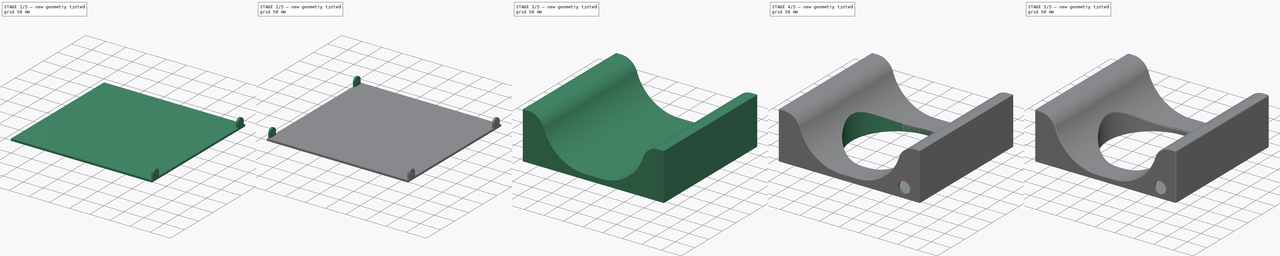
[diagram: build sequence overview — one tinted view per stage of 5, left to right]
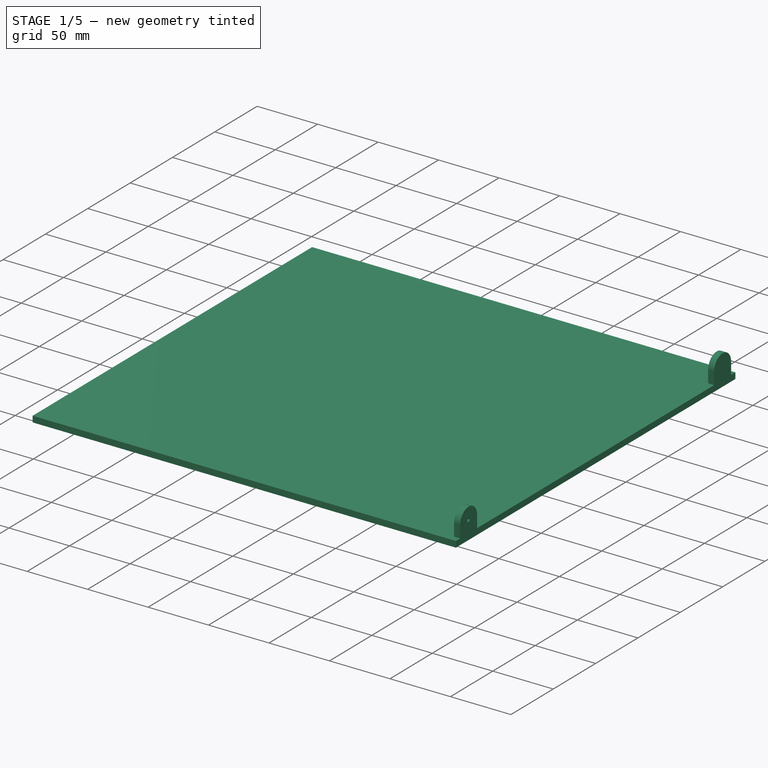
[diagram: stage 1 of 5 — iso view after this stage's code; geometry added in this stage tinted green]
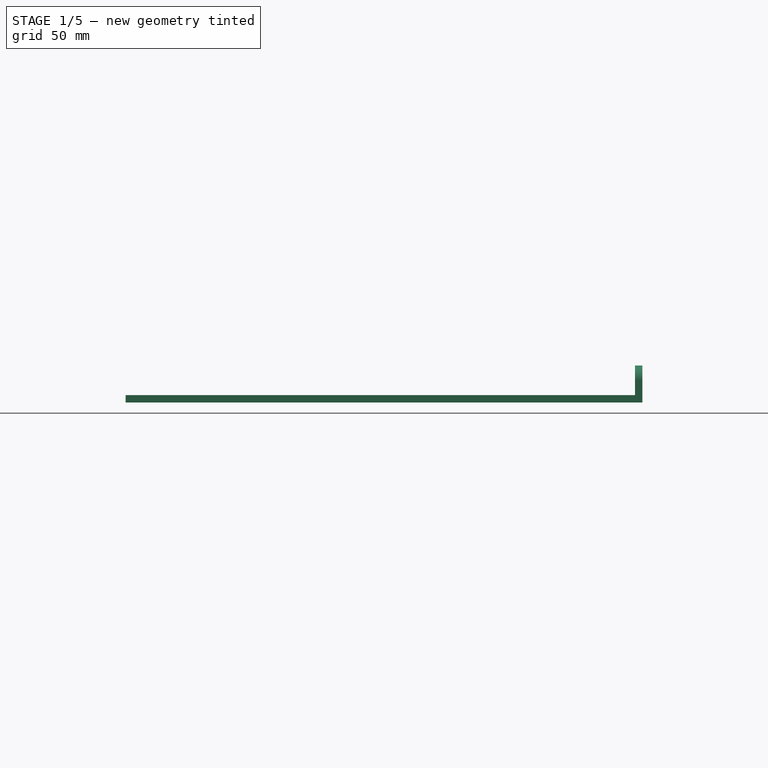
[diagram: stage 1 of 5 — front view after this stage's code; geometry added in this stage tinted green]
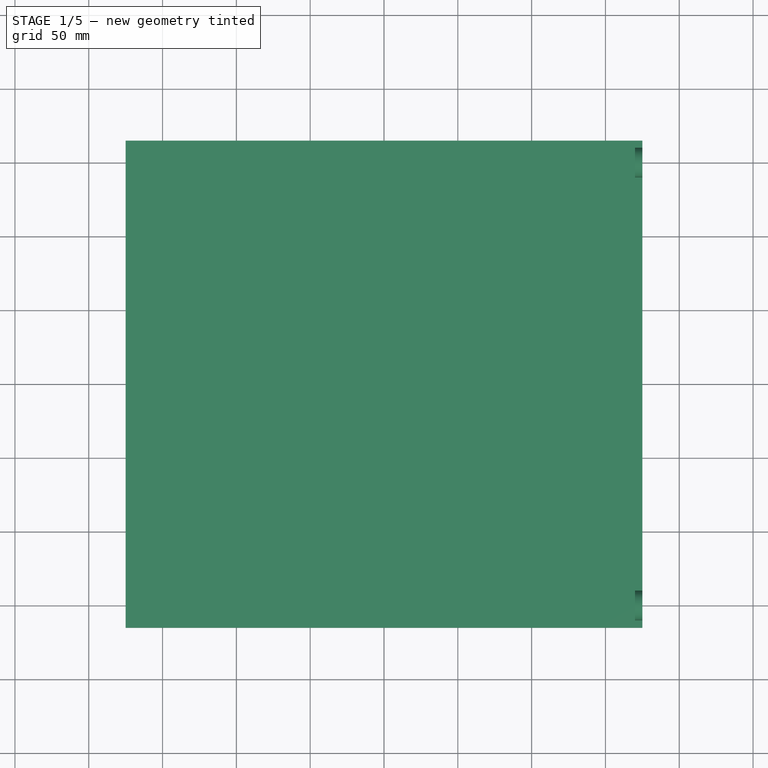
[diagram: stage 1 of 5 — top view after this stage's code; geometry added in this stage tinted green]
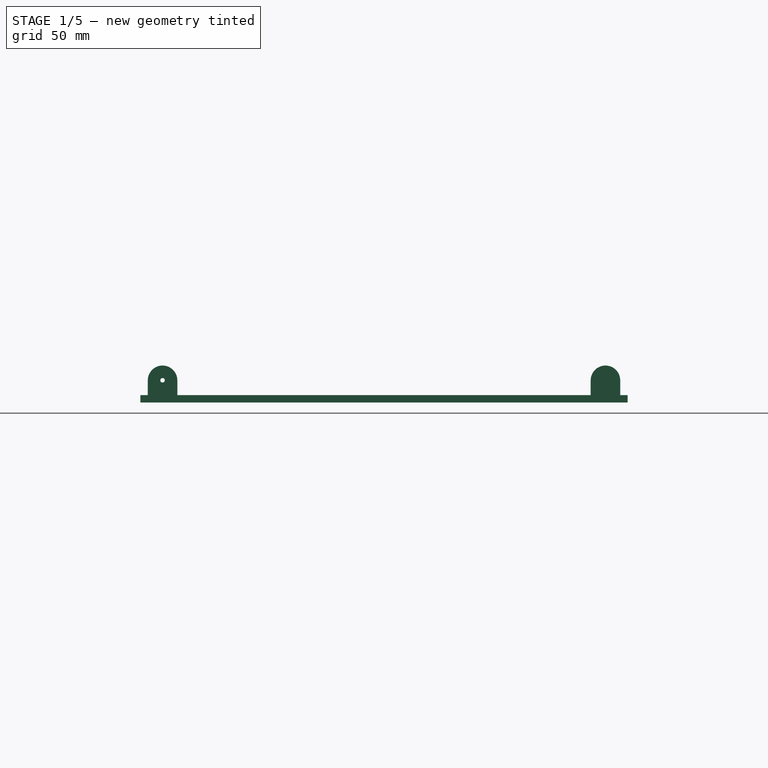
[diagram: stage 1 of 5 — right view after this stage's code; geometry added in this stage tinted green]
FCSTD DOCUMENT  (FreeCAD 0.19R24291 (Git))
Label: fus_curved_spine
License: All rights reserved
LicenseURL: http://en.wikipedia.org/wiki/All_rights_reserved
objects: Sketcher::SketchObject×12, PartDesign::Pocket×6, PartDesign::Fillet×5, PartDesign::Pad×4, PartDesign::Mirrored×4, PartDesign::Body×2, PartDesign::PolarPattern×2
note: 50 computed .brp shape members not serialized (recipe doc carries the construction recipe); baked Part::Feature solids carry a one-line shape summary decoded from their .brp

FEATURE [Sketcher::SketchObject] Sketch008
  AttachmentOffset = pos=(0,0,20) rot=(0,0,1;0rad)
  FullyConstrained = true
  MapMode = 5
  Placement = pos=(20,-4.4e-15,4.4e-15) rot=(0.57735,0.57735,0.57735;2.0944rad)
  Support = -> [YZ_Plane]
  sketch-geometry (1):
    g0: Circle CenterX=-120 CenterY=15 CenterZ=0 NormalX=0 NormalY=0 NormalZ=1 AngleXU=0 Radius=1
  constraints (3):
    c: Radius(g0) = 1
    c: DistanceX(g0,g-1) = 120
    c: DistanceY(g-1,g0) = 15
FEATURE [Sketcher::SketchObject] Sketch009
  AttachmentOffset = pos=(0,0,15) rot=(0,0,1;0rad)
  ExternalGeometry = -> [Sketch008]
  FullyConstrained = false
  MapMode = 5
  Placement = pos=(0,0,15) rot=(0,0,1;0rad)
  Support = -> [XY_Plane]
  sketch-geometry (32):
    g0-g4: Circle x5 (B-spline internal-alignment scaffolding for g5; pole/knot coordinates omitted)
    g5: BSplineCurve PolesCount=5 KnotsCount=3 Degree=3 IsPeriodic=0
    g6: GeomPoint X=20 Y=-120 Z=0
    g7: GeomPoint X=-88.4332 Y=-82.3166 Z=0
    g8: GeomPoint X=-124.052 Y=15.2977 Z=0
    g9-g20: Circle x12 (B-spline internal-alignment scaffolding for g21; pole/knot coordinates omitted)
    g21: BSplineCurve PolesCount=12 KnotsCount=10 Degree=3 IsPeriodic=0
    g22-g31: GeomPoint x10 (B-spline internal-alignment scaffolding for g21; pole/knot coordinates omitted)
  constraints (14):
    c: Weight(g0) = 1
    c: Equal(g0, g1-g4) x4
    c: InternalAlignment(g0-g4 -> g5) x5
    c: InternalAlignment(g6,g5)
    c: InternalAlignment(g7,g5)
    c: InternalAlignment(g8,g5)
    c: DistanceY(g5,g-1) = 120
    c: DistanceX(g-1,g5) = 20
    c: Coincident(g21,g-3)
    c: Weight(g9) = 1
    c: Equal(g9, g10-g20) x11
    c: Coincident(g21,g5)
    c: InternalAlignment(g9-g20 -> g21) x12
    c: InternalAlignment(g22-g31 -> g21) x10
FEATURE [PartDesign::Body] Body
  Group = -> [Sketch,Pad,Sketch001,Pocket,Pad001,Sketch002,Pocket001,Pocket002,Sketch007,Sketch006,Sketch003,Pocket003,Fillet,Fillet001,Fillet002,Fillet003,Sketch008,Sketch009]
  Origin = -> Origin
  Tip = -> Fillet003
FEATURE [Sketcher::SketchObject] Sketch010
  FullyConstrained = true
  MapMode = 5
  Support = -> [XY_Plane001]
  sketch-geometry (4):
    g0: LineSegment StartX=-175 StartY=165 StartZ=0 EndX=175 EndY=165 EndZ=0
    g1: LineSegment StartX=175 StartY=165 StartZ=0 EndX=175 EndY=-165 EndZ=0
    g2: LineSegment StartX=175 StartY=-165 StartZ=0 EndX=-175 EndY=-165 EndZ=0
    g3: LineSegment StartX=-175 StartY=-165 StartZ=0 EndX=-175 EndY=165 EndZ=0
  constraints (10):
    c: Coincident(g0,g1)
    c: Coincident(g1,g2)
    c: Coincident(g2,g3)
    c: Coincident(g3,g0)
    c: Horizontal(g2)
    c: Vertical(g3)
    c: DistanceX(g2,g2) = 350
    c: DistanceY(g1,g1) = 330
    c: Symmetric(g0,g1,g-1)
    c: Symmetric(g0,g0,g-2)
FEATURE [PartDesign::Pad] Pad002
  Direction = (1,1,1)
  Length = 5
  Length2 = 100
  Profile = -> Sketch010
  Refine = true
  Type = 0
FEATURE [Sketcher::SketchObject] Sketch011
  AttachmentOffset = pos=(0,0,175) rot=(0,0,1;0rad)
  ExternalGeometry = -> [Pad002]
  FullyConstrained = true
  MapMode = 5
  Placement = pos=(175,-3.89e-14,3.89e-14) rot=(0.57735,0.57735,0.57735;2.0944rad)
  Support = -> [YZ_Plane001]
  sketch-geometry (4):
    g0: LineSegment StartX=-160 StartY=0 StartZ=0 EndX=-160 EndY=15 EndZ=0
    g1: ArcOfCircle CenterX=-150 CenterY=15 CenterZ=0 NormalX=0 NormalY=0 NormalZ=1 AngleXU=0 Radius=10 StartAngle=1e-16 EndAngle=3.14159
    g2: LineSegment StartX=-140 StartY=15 StartZ=0 EndX=-140 EndY=0 EndZ=0
    g3: LineSegment StartX=-140 StartY=0 StartZ=0 EndX=-160 EndY=0 EndZ=0
  constraints (11):
    c: PointOnObject(g0,g-1)
    c: Vertical(g0)
    c: Tangent(g0,g1) = 1.5708
    c: Tangent(g1,g2) = 1.5708
    c: Coincident(g3,g2)
    c: Horizontal(g3)
    c: Coincident(g0,g3)
    c: Radius(g1) = 10
    c: DistanceY(g2,g2) = 15
    c: DistanceX(g2,g-1) = 140
    c: Vertical(g2)
FEATURE [PartDesign::Pad] Pad003
  BaseFeature = -> Pad002
  Direction = (1,1,1)
  Length = 5
  Length2 = 100
  Profile = -> Sketch011
  Refine = true
  Reversed = true
  Type = 0
FEATURE [Sketcher::SketchObject] Sketch012
  AttachmentOffset = pos=(0,0,175) rot=(0,0,1;0rad)
  ExternalGeometry = -> [Pad003]
  FullyConstrained = true
  MapMode = 5
  Placement = pos=(175,-3.89e-14,3.89e-14) rot=(0.57735,0.57735,0.57735;2.0944rad)
  Support = -> [YZ_Plane001]
  sketch-geometry (1):
    g0: Circle CenterX=-150 CenterY=15 CenterZ=0 NormalX=0 NormalY=0 NormalZ=1 AngleXU=0 Radius=1.5
  constraints (2):
    c: Coincident(g0,g-3)
    c: Radius(g0) = 1.5
FEATURE [PartDesign::Pocket] Pocket004
  BaseFeature = -> Pad003
  Length = 5
  Length2 = 100
  Profile = -> Sketch012
  Refine = true
  Type = 0
FEATURE [PartDesign::Mirrored] Mirrored
  BaseFeature = -> Pocket004
  MirrorPlane = -> Sketch011 [V_Axis]
  Originals = -> [Pad003]
  Refine = true
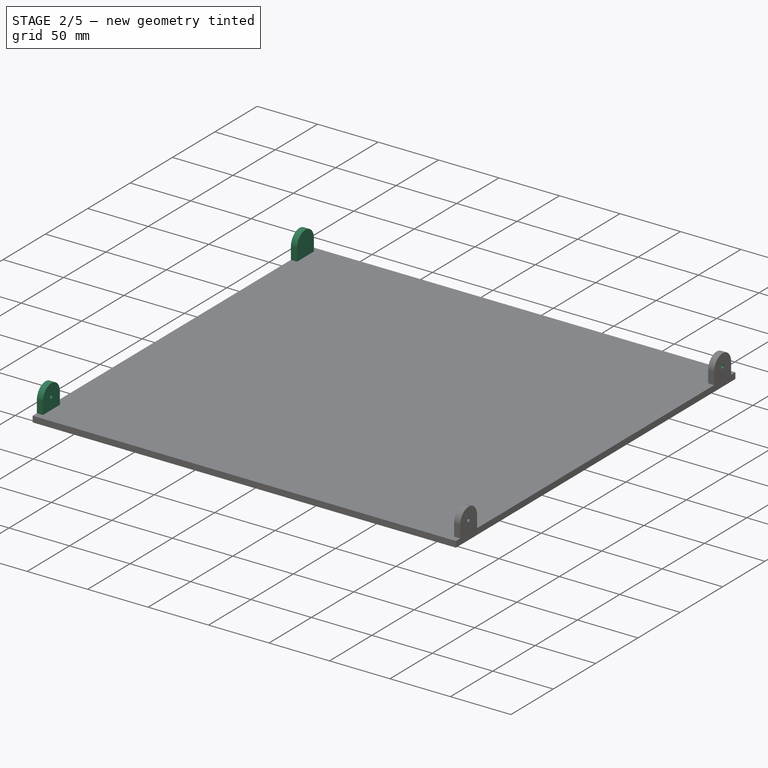
[diagram: stage 2 of 5 — iso view after this stage's code; geometry added in this stage tinted green]
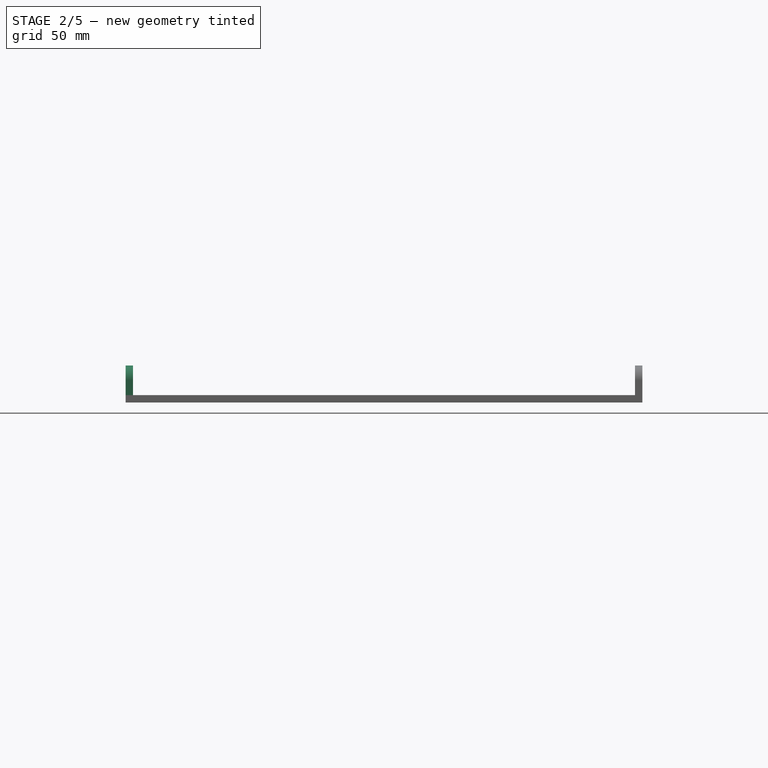
[diagram: stage 2 of 5 — front view after this stage's code; geometry added in this stage tinted green]
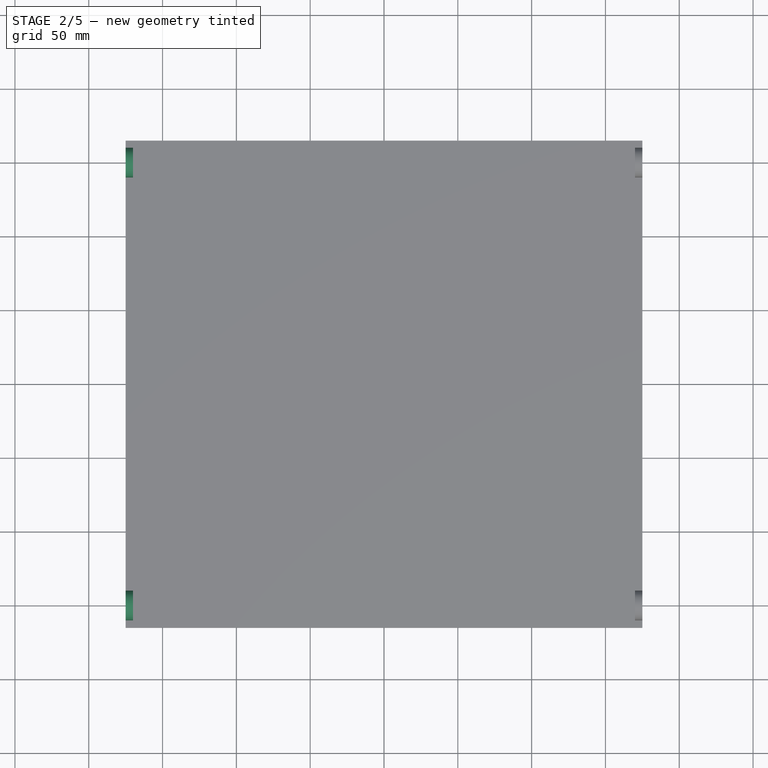
[diagram: stage 2 of 5 — top view after this stage's code; geometry added in this stage tinted green]
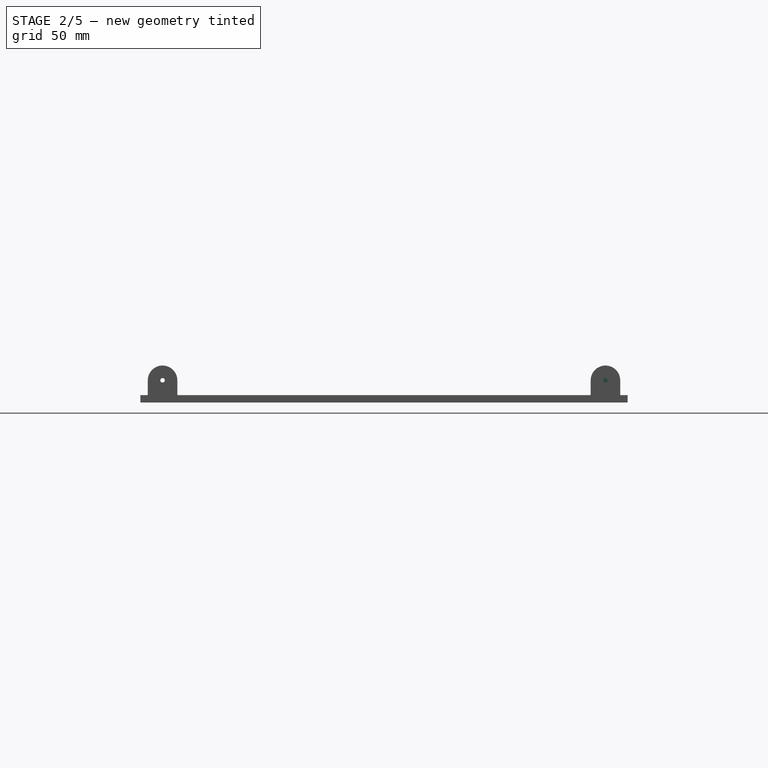
[diagram: stage 2 of 5 — right view after this stage's code; geometry added in this stage tinted green]
FEATURE [PartDesign::Mirrored] Mirrored001
  BaseFeature = -> Mirrored
  MirrorPlane = -> Sketch012 [V_Axis]
  Originals = -> [Pocket004]
  Refine = true
FEATURE [PartDesign::Mirrored] Mirrored002
  BaseFeature = -> Mirrored001
  MirrorPlane = -> YZ_Plane001
  Originals = -> [Pad003]
  Refine = true
FEATURE [PartDesign::Mirrored] Mirrored003
  BaseFeature = -> Mirrored002
  MirrorPlane = -> YZ_Plane001
  Originals = -> [Pocket004]
  Refine = true
FEATURE [PartDesign::PolarPattern] PolarPattern
  Angle = 360
  Axis = -> Z_Axis001
  BaseFeature = -> Mirrored003
  Occurrences = 2
  Originals = -> [Pad003]
  Refine = true
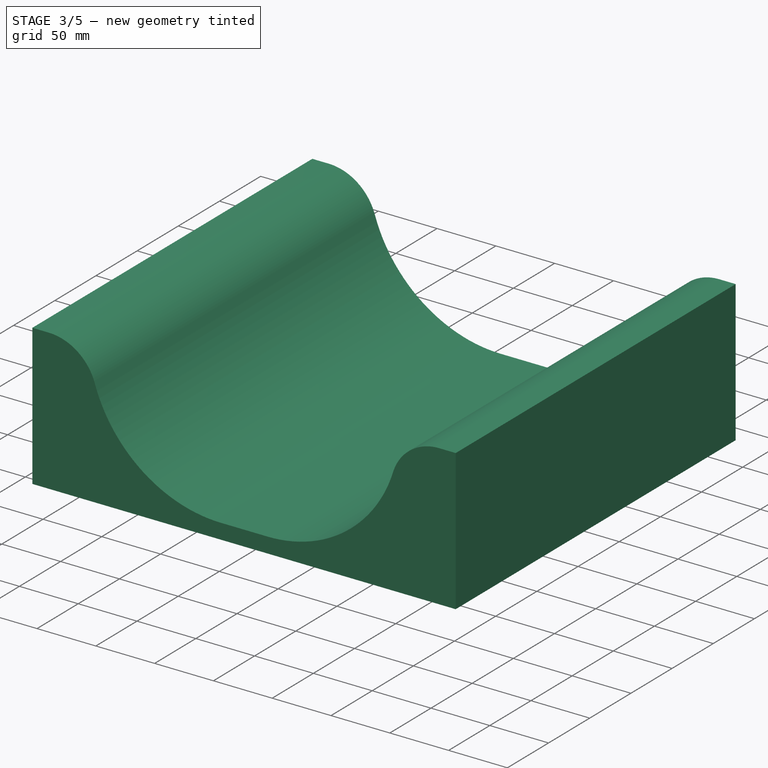
[diagram: stage 3 of 5 — iso view after this stage's code; geometry added in this stage tinted green]
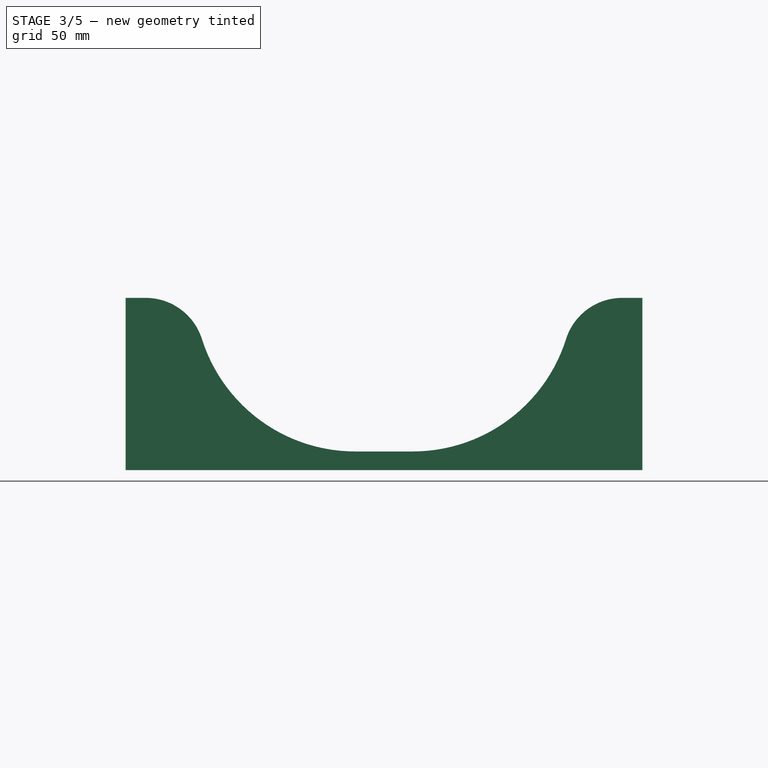
[diagram: stage 3 of 5 — front view after this stage's code; geometry added in this stage tinted green]
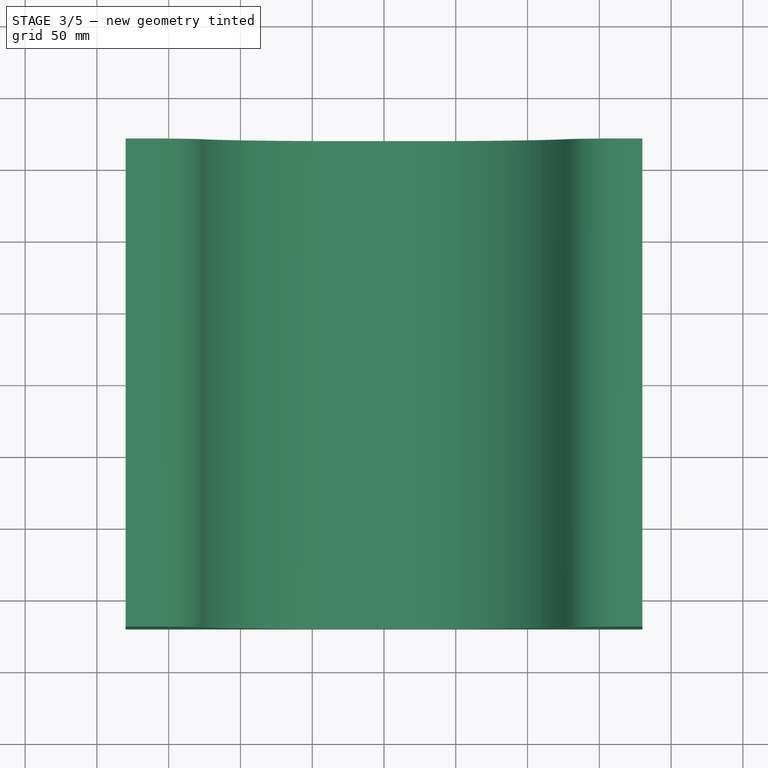
[diagram: stage 3 of 5 — top view after this stage's code; geometry added in this stage tinted green]
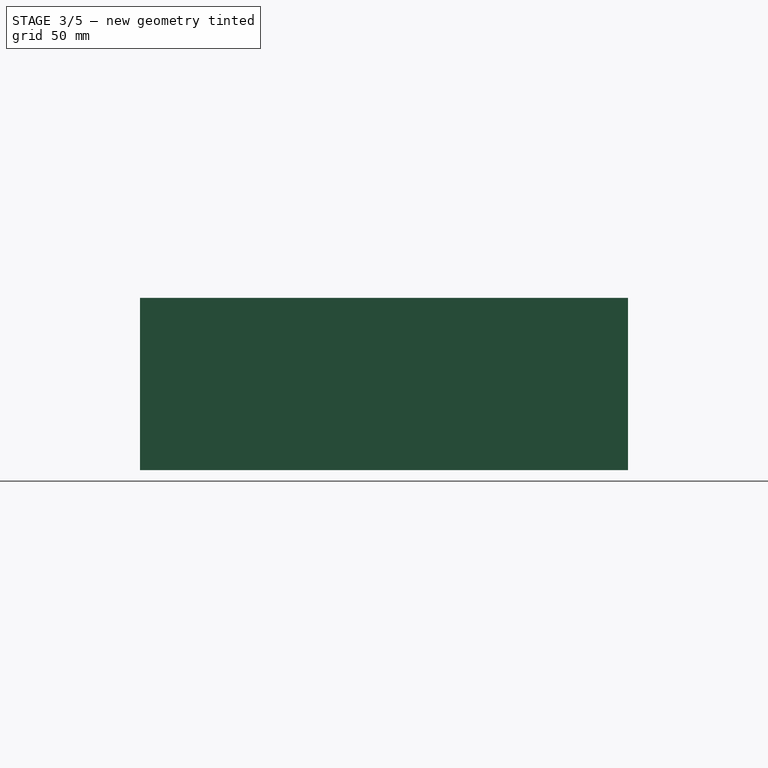
[diagram: stage 3 of 5 — right view after this stage's code; geometry added in this stage tinted green]
FEATURE [Sketcher::SketchObject] Sketch
  FullyConstrained = true
  MapMode = 5
  Placement = pos=(0,0,0) rot=(1,0,0;1.5708rad)
  Support = -> [XZ_Plane]
  sketch-geometry (10):
    g0: LineSegment StartX=-180 StartY=0 StartZ=0 EndX=180 EndY=0 EndZ=0
    g1: LineSegment StartX=180 StartY=0 StartZ=0 EndX=180 EndY=120 EndZ=0
    g2: LineSegment StartX=180 StartY=120 StartZ=0 EndX=166 EndY=120 EndZ=0
    g3: ArcOfCircle CenterX=20 CenterY=125 CenterZ=0 NormalX=0 NormalY=0 NormalZ=1 AngleXU=0 Radius=112 StartAngle=4.71239 EndAngle=5.97729
    g4: ArcOfCircle CenterX=-20 CenterY=125 CenterZ=0 NormalX=0 NormalY=0 NormalZ=1 AngleXU=0 Radius=112 StartAngle=3.44749 EndAngle=4.71239
    g5: LineSegment StartX=-166 StartY=120 StartZ=0 EndX=-180 EndY=120 EndZ=0
    g6: LineSegment StartX=-180 StartY=120 StartZ=0 EndX=-180 EndY=0 EndZ=0
    g7: LineSegment StartX=20 StartY=13 StartZ=0 EndX=-20 EndY=13 EndZ=0
    g8: ArcOfCircle CenterX=166 CenterY=78.8925 CenterZ=0 NormalX=0 NormalY=0 NormalZ=1 AngleXU=0 Radius=41.1075 StartAngle=1.5708 EndAngle=2.8357
    g9: ArcOfCircle CenterX=-166 CenterY=78.8925 CenterZ=0 NormalX=0 NormalY=0 NormalZ=1 AngleXU=0 Radius=41.1075 StartAngle=0.305893 EndAngle=1.5708
  constraints (25):
    c: Coincident(g0,g1)
    c: Vertical(g1)
    c: Coincident(g1,g2)
    c: Horizontal(g2)
    c: Horizontal(g5)
    c: Coincident(g5,g6)
    c: Coincident(g6,g0)
    c: Vertical(g6)
    c: Symmetric(g0,g0,g-2)
    c: Symmetric(g4,g3,g-2)
    c: PointOnObject(g0,g-1)
    c: DistanceX(g0,g0) = 360
    c: DistanceY(g1,g1) = 120
    c: Equal(g6,g1)
    c: Tangent(g7,g3) = 1.5708
    c: Tangent(g7,g4) = 1.5708
    c: DistanceY(g-1,g3) = 13
    c: Tangent(g8,g3) = 1.5708
    c: Tangent(g9,g4) = 1.5708
    c: Symmetric(g8,g9,g-2)
    c: Tangent(g8,g2) = -1.5708
    c: Tangent(g9,g5) = -1.5708
    c: DistanceX(g7,g7) = 40
    c: DistanceY(g-1,g3) = 125
    c: DistanceX(g2,g2) = 14
FEATURE [PartDesign::Pad] Pad
  Direction = (1,1,1)
  Length = 340
  Length2 = 100
  Midplane = true
  Placement = pos=(0,0,0) rot=(1,0,0;1.5708rad)
  Profile = -> Sketch
  Refine = true
  Type = 0
FEATURE [Sketcher::SketchObject] Sketch001
  FullyConstrained = true
  MapMode = 5
  Placement = pos=(0,0,0) rot=(1,0,0;1.5708rad)
  Support = -> [XZ_Plane]
  sketch-geometry (10):
    g0: LineSegment StartX=-175 StartY=0 StartZ=0 EndX=175 EndY=0 EndZ=0
    g1: LineSegment StartX=175 StartY=0 StartZ=0 EndX=175 EndY=115 EndZ=0
    g2: LineSegment StartX=175 StartY=115 StartZ=0 EndX=161 EndY=115 EndZ=0
    g3: ArcOfCircle CenterX=20 CenterY=125 CenterZ=0 NormalX=0 NormalY=0 NormalZ=1 AngleXU=0 Radius=117 StartAngle=4.71239 EndAngle=6.01069
    g4: ArcOfCircle CenterX=-20 CenterY=125 CenterZ=0 NormalX=0 NormalY=0 NormalZ=1 AngleXU=0 Radius=117 StartAngle=3.41409 EndAngle=4.71239
    g5: LineSegment StartX=-161 StartY=115 StartZ=0 EndX=-175 EndY=115 EndZ=0
    g6: LineSegment StartX=-175 StartY=115 StartZ=0 EndX=-175 EndY=0 EndZ=0
    g7: LineSegment StartX=20 StartY=8 StartZ=0 EndX=-20 EndY=8 EndZ=0
    g8: ArcOfCircle CenterX=161 CenterY=85.5981 CenterZ=0 NormalX=0 NormalY=0 NormalZ=1 AngleXU=0 Radius=29.4019 StartAngle=1.5708 EndAngle=2.8691
    g9: ArcOfCircle CenterX=-161 CenterY=85.5981 CenterZ=0 NormalX=0 NormalY=0 NormalZ=1 AngleXU=0 Radius=29.4019 StartAngle=0.272495 EndAngle=1.5708
  constraints (25):
    c: Coincident(g0,g1)
    c: Vertical(g1)
    c: Coincident(g1,g2)
    c: Horizontal(g2)
    c: Horizontal(g5)
    c: Coincident(g5,g6)
    c: Coincident(g6,g0)
    c: Vertical(g6)
    c: Symmetric(g0,g0,g-2)
    c: Symmetric(g4,g3,g-2)
    c: PointOnObject(g0,g-1)
    c: DistanceX(g0,g0) = 350
    c: DistanceY(g1,g1) = 115
    c: Equal(g6,g1)
    c: Tangent(g7,g3) = 1.5708
    c: Tangent(g7,g4) = 1.5708
    c: DistanceY(g-1,g3) = 8
    c: Tangent(g8,g3) = 1.5708
    c: Tangent(g9,g4) = 1.5708
    c: Symmetric(g8,g9,g-2)
    c: Tangent(g8,g2) = -1.5708
    c: Tangent(g9,g5) = -1.5708
    c: DistanceX(g7,g7) = 40
    c: DistanceY(g-1,g3) = 125
    c: DistanceX(g2,g2) = 14
FEATURE [PartDesign::Pocket] Pocket
  BaseFeature = -> Pad
  Length = 330
  Length2 = 100
  Midplane = true
  Placement = pos=(0,0,0) rot=(1,0,0;1.5708rad)
  Profile = -> Sketch001
  Refine = true
  Type = 0
FEATURE [PartDesign::PolarPattern] PolarPattern001
  Angle = 360
  Axis = -> Z_Axis001
  BaseFeature = -> PolarPattern
  Occurrences = 2
  Originals = -> [Pocket004]
  Refine = true
FEATURE [PartDesign::Fillet] Fillet004
  Base = -> PolarPattern001 [Face4]
  BaseFeature = -> PolarPattern001
  Radius = 1
  Refine = true
  SupportTransform = false
FEATURE [Sketcher::SketchObject] Sketch013
  FullyConstrained = true
  MapMode = 5
  Support = -> [XY_Plane001]
  sketch-geometry (1):
    g0: Circle CenterX=0 CenterY=0 CenterZ=0 NormalX=0 NormalY=0 NormalZ=1 AngleXU=0 Radius=117.5
  constraints (2):
    c: Coincident(g0,g-1)
    c: Radius(g0) = 117.5
FEATURE [PartDesign::Pocket] Pocket005
  BaseFeature = -> Fillet004
  Length = 10
  Length2 = 100
  Profile = -> Sketch013
  Refine = true
  Reversed = true
  Type = 0
FEATURE [PartDesign::Body] Body001  label="Base"
  Group = -> [Sketch010,Pad002,Sketch011,Pad003,Sketch012,Pocket004,Mirrored,Mirrored001,Mirrored002,Mirrored003,PolarPattern,PolarPattern001,Fillet004,Sketch013,Pocket005]
  Origin = -> Origin001
  Tip = -> Pocket005
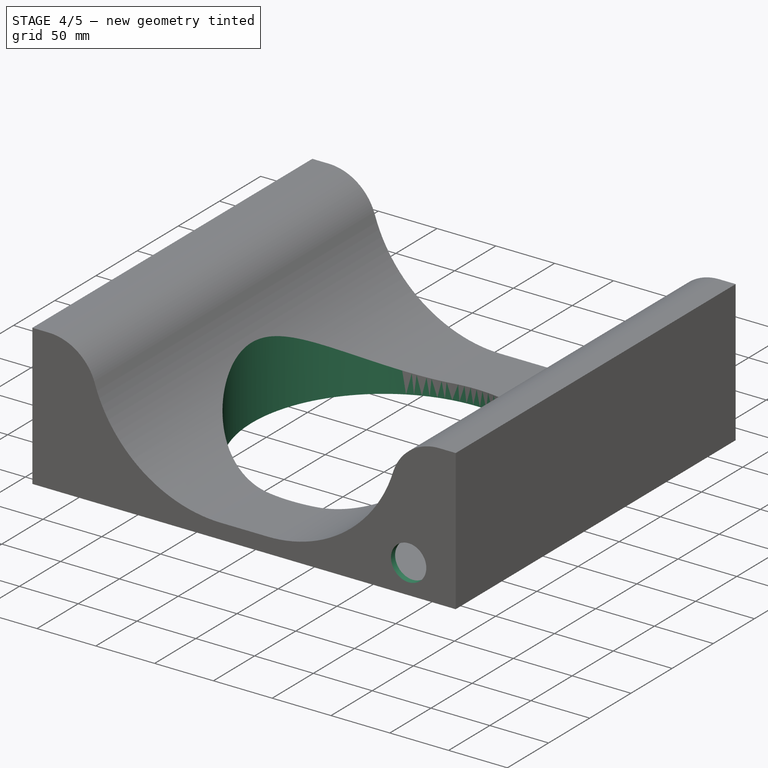
[diagram: stage 4 of 5 — iso view after this stage's code; geometry added in this stage tinted green]
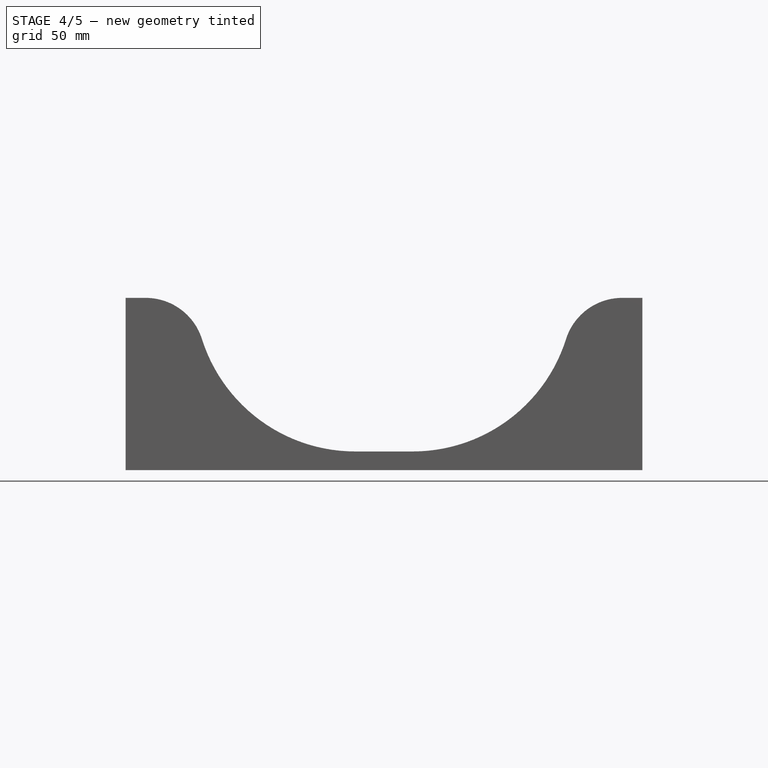
[diagram: stage 4 of 5 — front view after this stage's code; geometry added in this stage tinted green]
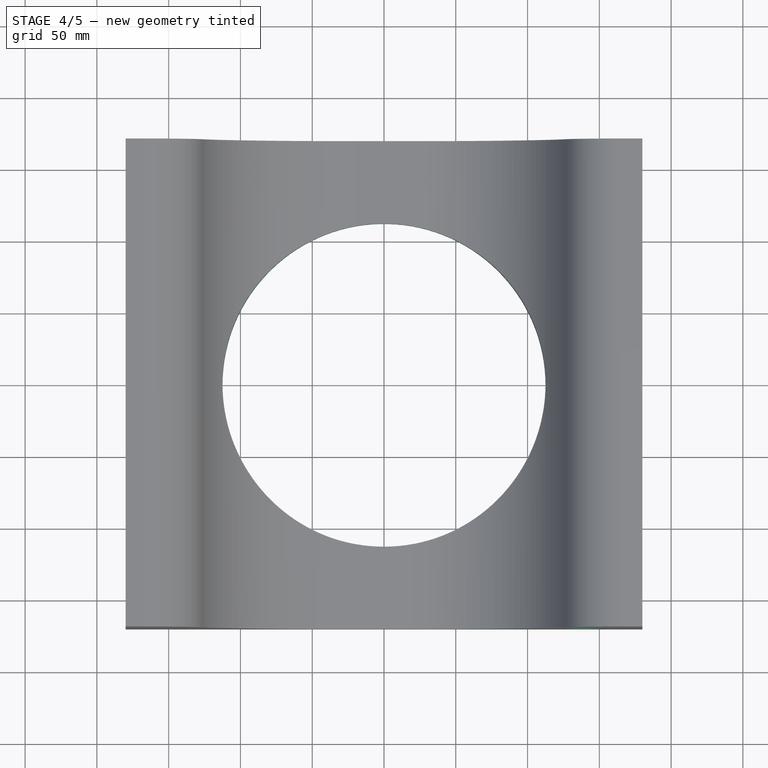
[diagram: stage 4 of 5 — top view after this stage's code; geometry added in this stage tinted green]
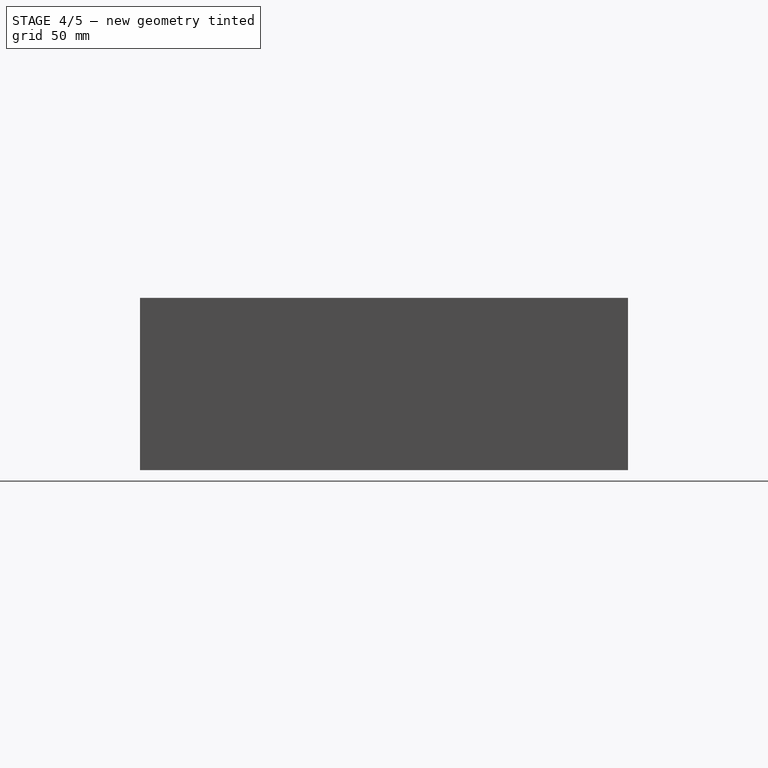
[diagram: stage 4 of 5 — right view after this stage's code; geometry added in this stage tinted green]
FEATURE [Sketcher::SketchObject] Sketch002
  FullyConstrained = true
  MapMode = 5
  Support = -> [XY_Plane]
  sketch-geometry (1):
    g0: Circle CenterX=0 CenterY=0 CenterZ=0 NormalX=0 NormalY=0 NormalZ=1 AngleXU=0 Radius=112.5
  constraints (2):
    c: Coincident(g0,g-1)
    c: Radius(g0) = 112.5
FEATURE [Sketcher::SketchObject] Sketch003
  FullyConstrained = true
  MapMode = 5
  Support = -> [XY_Plane]
  sketch-geometry (1):
    g0: Circle CenterX=0 CenterY=0 CenterZ=0 NormalX=0 NormalY=0 NormalZ=1 AngleXU=0 Radius=117.5
  constraints (2):
    c: Coincident(g0,g-1)
    c: Radius(g0) = 117.5
FEATURE [PartDesign::Pad] Pad001
  BaseFeature = -> Pocket
  Direction = (1,1,1)
  Length = 65
  Length2 = 100
  Placement = pos=(0,0,0) rot=(1,0,0;1.5708rad)
  Profile = -> Sketch003
  Refine = true
  Type = 0
FEATURE [PartDesign::Pocket] Pocket001
  BaseFeature = -> Pad001
  Length = 5
  Length2 = 100
  Placement = pos=(0,0,0) rot=(1,0,0;1.5708rad)
  Profile = -> Sketch002
  Refine = true
  Reversed = true
  Type = 1
FEATURE [Sketcher::SketchObject] Sketch006
  FullyConstrained = true
  MapMode = 5
  Placement = pos=(0,0,0) rot=(1,0,0;1.5708rad)
  Support = -> [XZ_Plane]
  sketch-geometry (11):
    g0: LineSegment StartX=-180 StartY=0 StartZ=0 EndX=180 EndY=0 EndZ=0
    g1: LineSegment StartX=180 StartY=120.02 StartZ=0 EndX=166 EndY=120.02 EndZ=0
    g2: ArcOfCircle CenterX=20 CenterY=125 CenterZ=0 NormalX=0 NormalY=0 NormalZ=1 AngleXU=0 Radius=112 StartAngle=4.71239 EndAngle=5.97747
    g3: ArcOfCircle CenterX=-20 CenterY=125 CenterZ=0 NormalX=0 NormalY=0 NormalZ=1 AngleXU=0 Radius=112 StartAngle=3.44731 EndAngle=4.71239
    g4: LineSegment StartX=-166 StartY=120.02 StartZ=0 EndX=-180 EndY=120.02 EndZ=0
    g5: LineSegment StartX=20 StartY=13 StartZ=0 EndX=-20 EndY=13 EndZ=0
    g6: ArcOfCircle CenterX=166 CenterY=78.9211 CenterZ=0 NormalX=0 NormalY=0 NormalZ=1 AngleXU=0 Radius=41.0989 StartAngle=1.5708 EndAngle=2.83588
    g7: ArcOfCircle CenterX=-166 CenterY=78.9211 CenterZ=0 NormalX=0 NormalY=0 NormalZ=1 AngleXU=0 Radius=41.0989 StartAngle=0.305714 EndAngle=1.5708
    g8: LineSegment StartX=180 StartY=120.02 StartZ=0 EndX=180 EndY=150.02 EndZ=0
    g9: LineSegment StartX=180 StartY=150.02 StartZ=0 EndX=-180 EndY=150.02 EndZ=0
    g10: LineSegment StartX=-180 StartY=150.02 StartZ=0 EndX=-180 EndY=120.02 EndZ=0
  constraints (28):
    c: Horizontal(g1)
    c: Horizontal(g4)
    c: Symmetric(g0,g0,g-2)
    c: Symmetric(g3,g2,g-2)
    c: PointOnObject(g0,g-1)
    c: DistanceX(g0,g0) = 360
    c: Tangent(g5,g2) = 1.5708
    c: Tangent(g5,g3) = 1.5708
    c: DistanceY(g-1,g2) = 13
    c: Tangent(g6,g2) = 1.5708
    c: Tangent(g7,g3) = 1.5708
    c: Symmetric(g6,g7,g-2)
    c: Tangent(g6,g1) = -1.5708
    c: Tangent(g7,g4) = -1.5708
    c: DistanceX(g5,g5) = 40
    c: DistanceY(g-1,g2) = 125
    c: DistanceX(g1,g1) = 14
    c: Coincident(g1,g8)
    c: Vertical(g8)
    c: Coincident(g8,g9)
    c: Coincident(g9,g10)
    c: Coincident(g10,g4)
    c: Vertical(g10)
    c: DistanceX(g9,g9) = 360
    c: DistanceY(g8,g8) = 30
    c: Symmetric(g9,g8,g-2)
    c: DistanceY(g-1,g4) = 120.02
    c: Horizontal(g5)
FEATURE [PartDesign::Pocket] Pocket002
  BaseFeature = -> Pocket001
  Length = 340
  Length2 = 100
  Midplane = true
  Placement = pos=(0,0,0) rot=(1,0,0;1.5708rad)
  Profile = -> Sketch006
  Refine = true
  Type = 0
FEATURE [Sketcher::SketchObject] Sketch007
  AttachmentOffset = pos=(0,0,170) rot=(0,0,1;0rad)
  FullyConstrained = true
  MapMode = 5
  Placement = pos=(0,-170,-3.77e-14) rot=(1,0,0;1.5708rad)
  Support = -> [XZ_Plane]
  sketch-geometry (1):
    g0: Circle CenterX=140 CenterY=25 CenterZ=0 NormalX=0 NormalY=0 NormalZ=1 AngleXU=0 Radius=15
  constraints (3):
    c: Radius(g0) = 15
    c: DistanceY(g-1,g0) = 25
    c: DistanceX(g-1,g0) = 140
FEATURE [PartDesign::Pocket] Pocket003
  BaseFeature = -> Pocket002
  Length = 5
  Length2 = 100
  Placement = pos=(0,0,0) rot=(1,0,0;1.5708rad)
  Profile = -> Sketch007
  Refine = true
  Type = 0
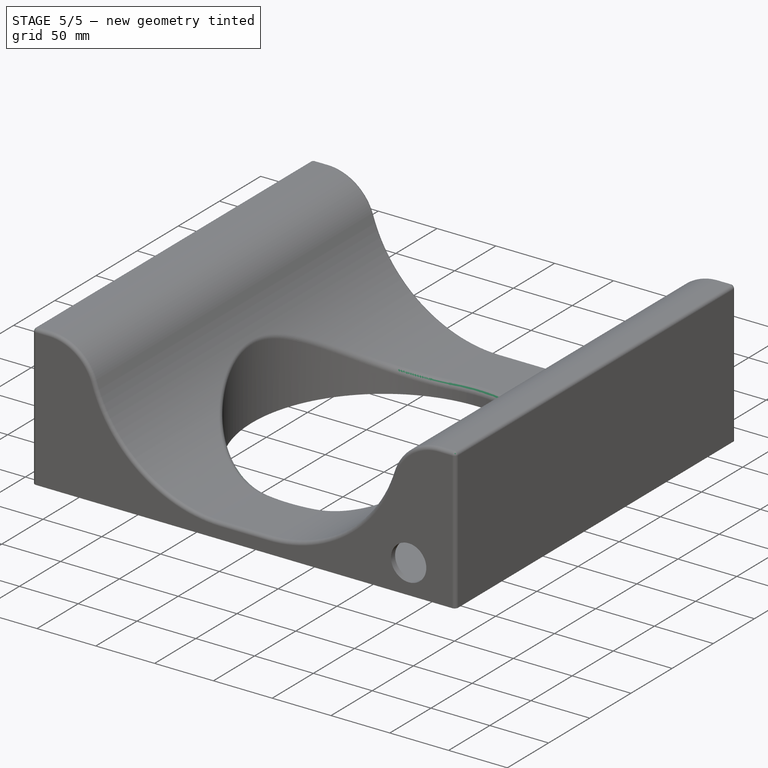
[diagram: stage 5 of 5 — iso view after this stage's code; geometry added in this stage tinted green]
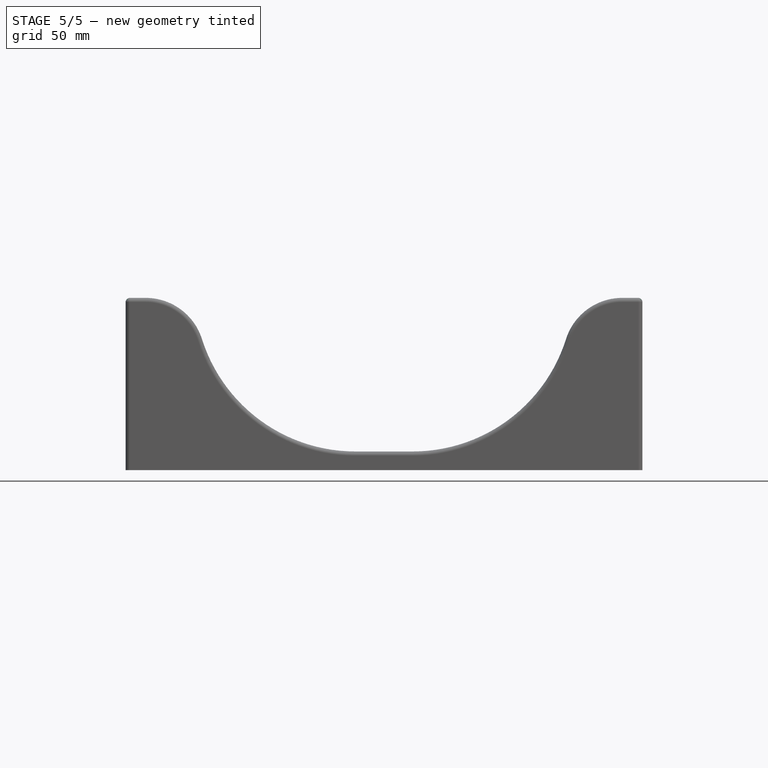
[diagram: stage 5 of 5 — front view after this stage's code; geometry added in this stage tinted green]
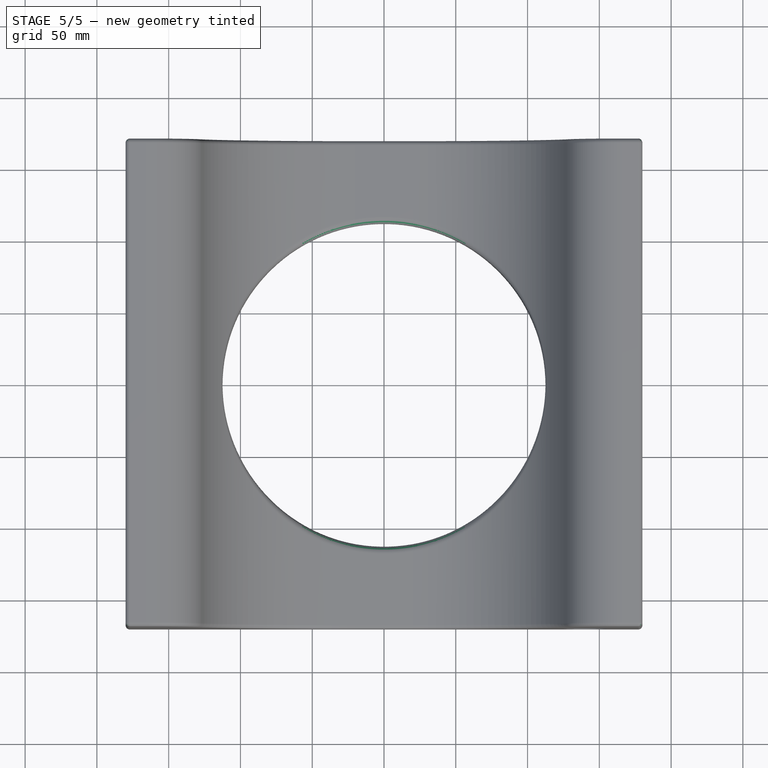
[diagram: stage 5 of 5 — top view after this stage's code; geometry added in this stage tinted green]
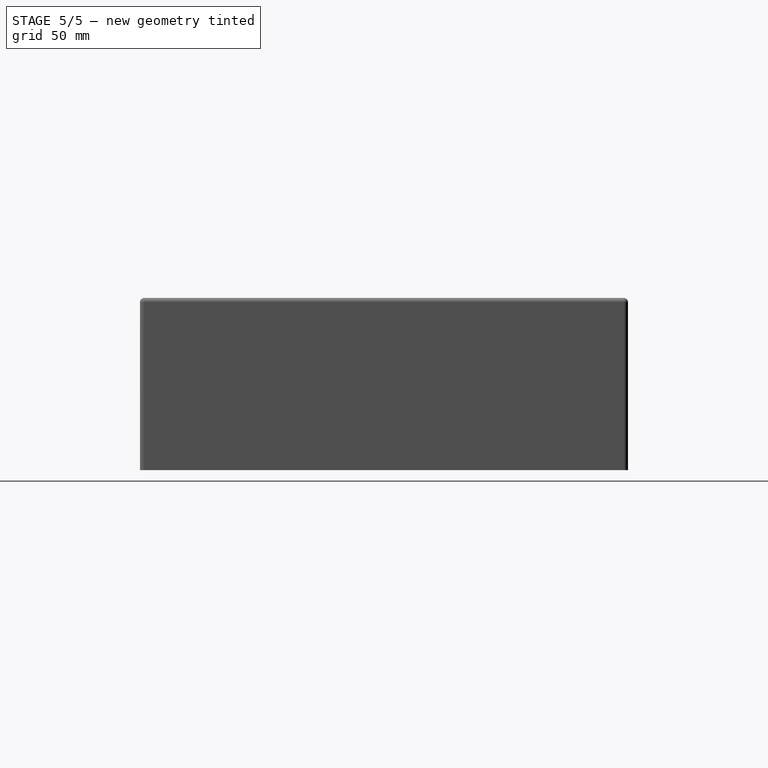
[diagram: stage 5 of 5 — right view after this stage's code; geometry added in this stage tinted green]
FEATURE [PartDesign::Fillet] Fillet
  Base = -> Pocket003 [Edge22,Edge21,Edge18,Edge13,Edge9,Edge25,Edge27]
  BaseFeature = -> Pocket003
  Placement = pos=(0,0,0) rot=(1,0,0;1.5708rad)
  Radius = 3
  Refine = true
  SupportTransform = false
FEATURE [PartDesign::Fillet] Fillet001
  Base = -> Fillet [Edge26,Edge20,Edge6,Edge27,Edge28,Edge21,Edge22]
  BaseFeature = -> Fillet
  Placement = pos=(0,0,0) rot=(1,0,0;1.5708rad)
  Radius = 3
  Refine = true
  SupportTransform = false
FEATURE [PartDesign::Fillet] Fillet002
  Base = -> Fillet001 [Edge59,Edge26]
  BaseFeature = -> Fillet001
  Placement = pos=(0,0,0) rot=(1,0,0;1.5708rad)
  Radius = 3
  Refine = true
  SupportTransform = false
FEATURE [PartDesign::Fillet] Fillet003
  Base = -> Fillet002 [Edge78,Edge73,Edge40,Edge41,Edge75]
  BaseFeature = -> Fillet002
  Placement = pos=(0,0,0) rot=(1,0,0;1.5708rad)
  Radius = 5
  Refine = true
  SupportTransform = false
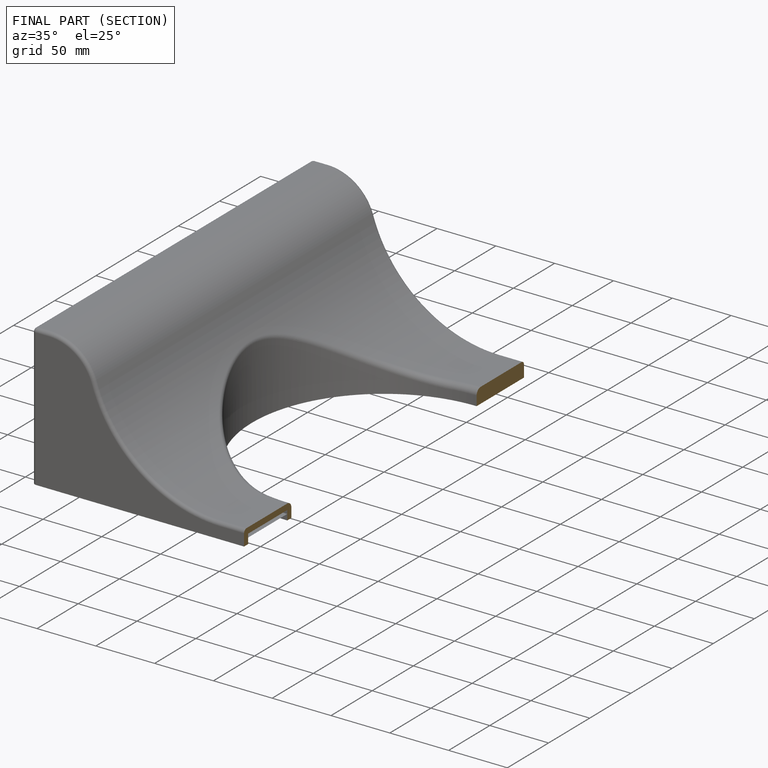
[diagram: finished part — half-section view (interior)]
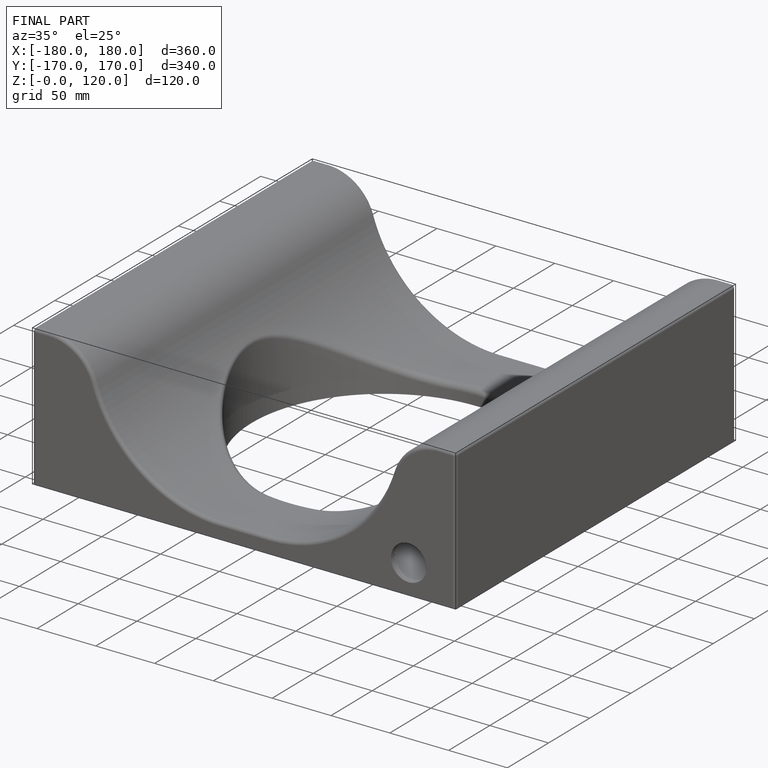
[diagram: finished part — iso view with bounding-box wireframe]
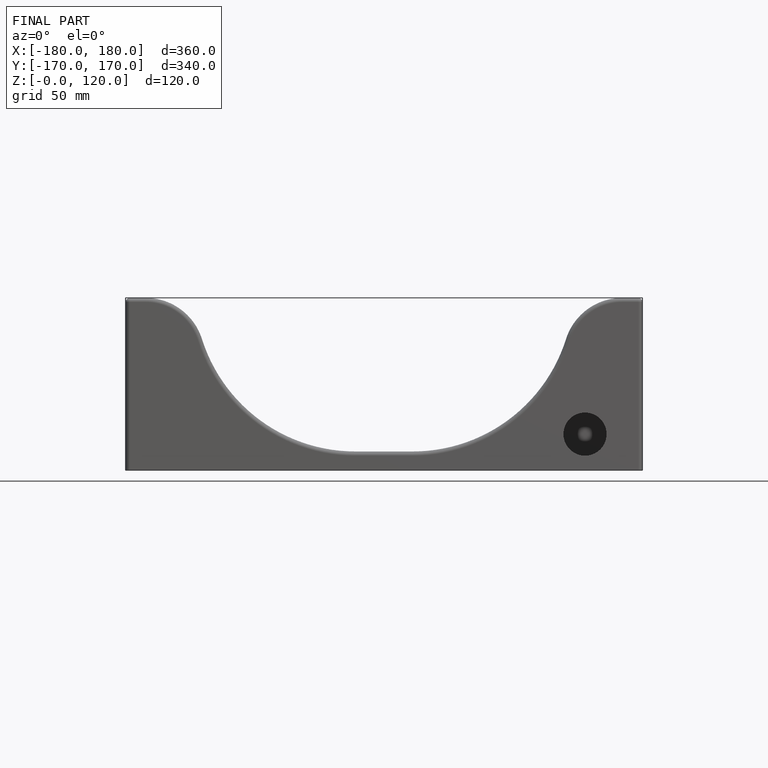
[diagram: finished part — front view with bounding-box wireframe]
